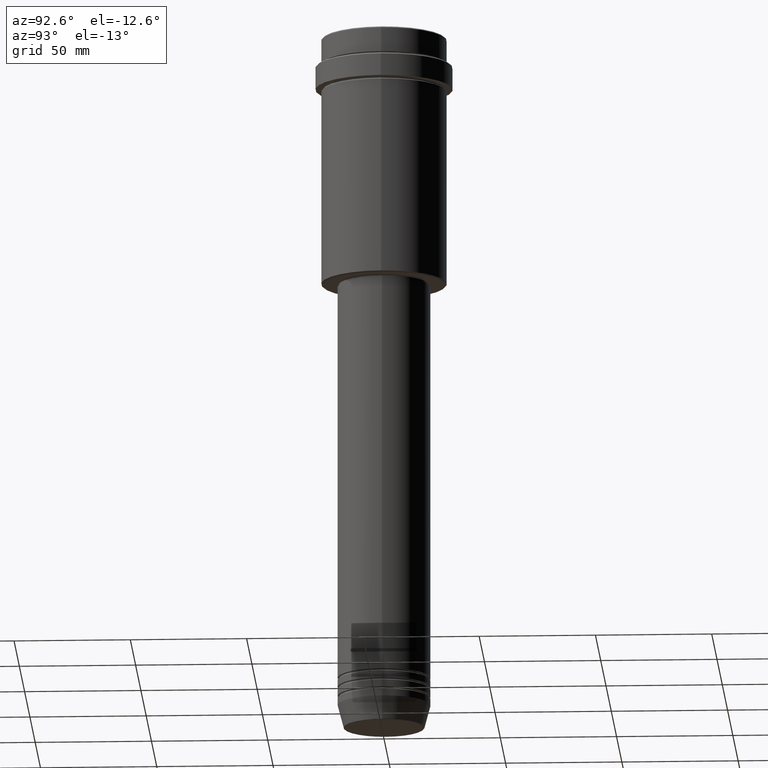
[diagram: clean part render]
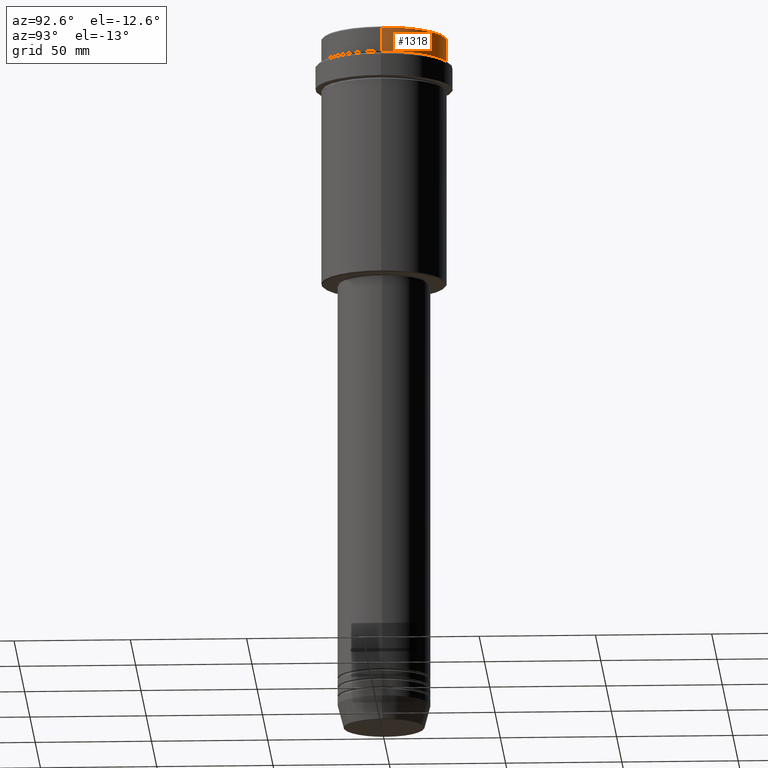
[diagram: same view with one face highlighted and labeled with its STEP entity id]
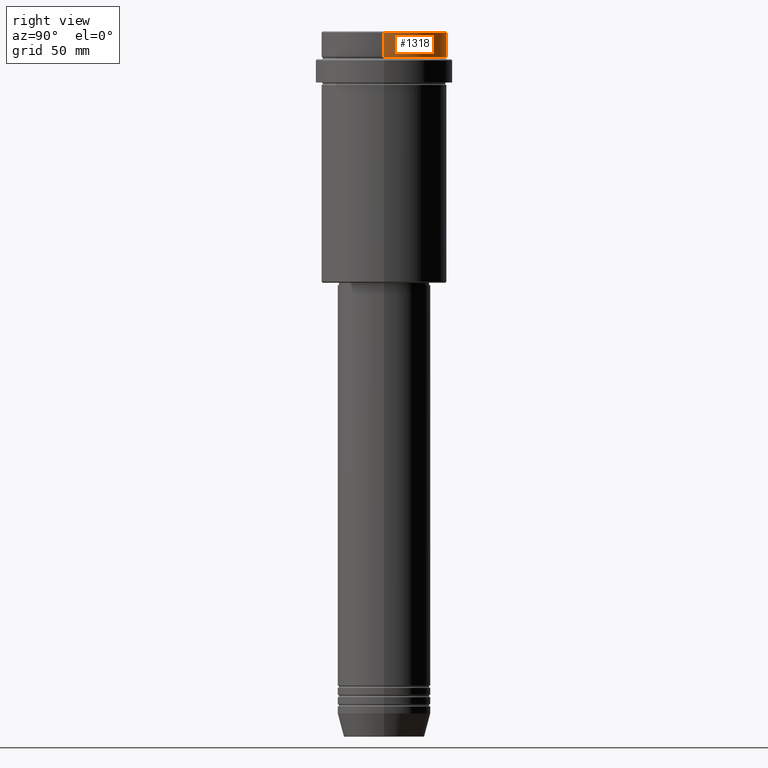
[diagram: same view with one face highlighted and labeled with its STEP entity id]
A machine part, auxiliary view. The second image highlights one B-rep face of the part: STEP entity #1318.
A second angle (right view) of the same face is appended — the face is thin or edge-on in the first view.
In plain terms, the highlighted cylindrical surface (partial cylindrical patch) has radius 27 mm, axis along (-0, -0, 1).
Its self-contained STEP definition (entity closure, byte-faithful):
#66 = VECTOR ( 'NONE', #976, 1000.000000000000000 ) ;
#69 = CARTESIAN_POINT ( 'NONE',  ( -27.00000000000000355, 3.306546357697854128E-15, -11.00000000000000178 ) ) ;
#120 = DIRECTION ( 'NONE',  ( 1.000000000000000000, 0.000000000000000000, 0.000000000000000000 ) ) ;
#175 = CIRCLE ( 'NONE', #270, 27.00000000000000355 ) ;
#176 = CARTESIAN_POINT ( 'NONE',  ( 27.00000000000000355, 0.000000000000000000, 0.000000000000000000 ) ) ;
#191 = CARTESIAN_POINT ( 'NONE',  ( 0.000000000000000000, 0.000000000000000000, -0.5000000000000073275 ) ) ;
#260 = EDGE_CURVE ( 'NONE', #1386, #261, #175, .T. ) ;
#261 = VERTEX_POINT ( 'NONE', #69 ) ;
#270 = AXIS2_PLACEMENT_3D ( 'NONE', #1267, #612, #1051 ) ;
#287 = DIRECTION ( 'NONE',  ( -0.000000000000000000, -0.000000000000000000, 1.000000000000000000 ) ) ;
#308 = ORIENTED_EDGE ( 'NONE', *, *, #493, .T. ) ;
#418 = CARTESIAN_POINT ( 'NONE',  ( -27.00000000000000355, 3.306546357697854128E-15, -0.5000000000000073275 ) ) ;
#493 = EDGE_CURVE ( 'NONE', #261, #1395, #1202, .T. ) ;
#595 = AXIS2_PLACEMENT_3D ( 'NONE', #191, #1070, #120 ) ;
#612 = DIRECTION ( 'NONE',  ( -0.000000000000000000, -0.000000000000000000, 1.000000000000000000 ) ) ;
#634 = ORIENTED_EDGE ( 'NONE', *, *, #908, .T. ) ;
#713 = DIRECTION ( 'NONE',  ( 1.000000000000000000, 0.000000000000000000, 0.000000000000000000 ) ) ;
#757 = CARTESIAN_POINT ( 'NONE',  ( 27.00000000000000355, 0.000000000000000000, -11.00000000000000178 ) ) ;
#778 = EDGE_LOOP ( 'NONE', ( #1095, #308, #634, #957 ) ) ;
#822 = VERTEX_POINT ( 'NONE', #1148 ) ;
#908 = EDGE_CURVE ( 'NONE', #1395, #822, #1371, .T. ) ;
#957 = ORIENTED_EDGE ( 'NONE', *, *, #1223, .F. ) ;
#976 = DIRECTION ( 'NONE',  ( -0.000000000000000000, -0.000000000000000000, 1.000000000000000000 ) ) ;
#996 = AXIS2_PLACEMENT_3D ( 'NONE', #1264, #1048, #713 ) ;
#1034 = FACE_OUTER_BOUND ( 'NONE', #778, .T. ) ;
#1048 = DIRECTION ( 'NONE',  ( -0.000000000000000000, -0.000000000000000000, 1.000000000000000000 ) ) ;
#1051 = DIRECTION ( 'NONE',  ( 1.000000000000000000, 0.000000000000000000, 0.000000000000000000 ) ) ;
#1069 = CYLINDRICAL_SURFACE ( 'NONE', #996, 27.00000000000000355 ) ;
#1070 = DIRECTION ( 'NONE',  ( 0.000000000000000000, 0.000000000000000000, -1.000000000000000000 ) ) ;
#1095 = ORIENTED_EDGE ( 'NONE', *, *, #260, .T. ) ;
#1148 = CARTESIAN_POINT ( 'NONE',  ( 27.00000000000000355, 0.000000000000000000, -0.5000000000000073275 ) ) ;
#1165 = LINE ( 'NONE', #176, #1196 ) ;
#1196 = VECTOR ( 'NONE', #287, 1000.000000000000000 ) ;
#1202 = LINE ( 'NONE', #1208, #66 ) ;
#1208 = CARTESIAN_POINT ( 'NONE',  ( -27.00000000000000355, 3.306546357697854128E-15, 0.000000000000000000 ) ) ;
#1223 = EDGE_CURVE ( 'NONE', #1386, #822, #1165, .T. ) ;
#1264 = CARTESIAN_POINT ( 'NONE',  ( 0.000000000000000000, 0.000000000000000000, 0.000000000000000000 ) ) ;
#1267 = CARTESIAN_POINT ( 'NONE',  ( 0.000000000000000000, 0.000000000000000000, -11.00000000000000178 ) ) ;
#1318 = ADVANCED_FACE ( 'NONE', ( #1034 ), #1069, .T. ) ;
#1371 = CIRCLE ( 'NONE', #595, 27.00000000000000355 ) ;
#1386 = VERTEX_POINT ( 'NONE', #757 ) ;
#1395 = VERTEX_POINT ( 'NONE', #418 ) ;